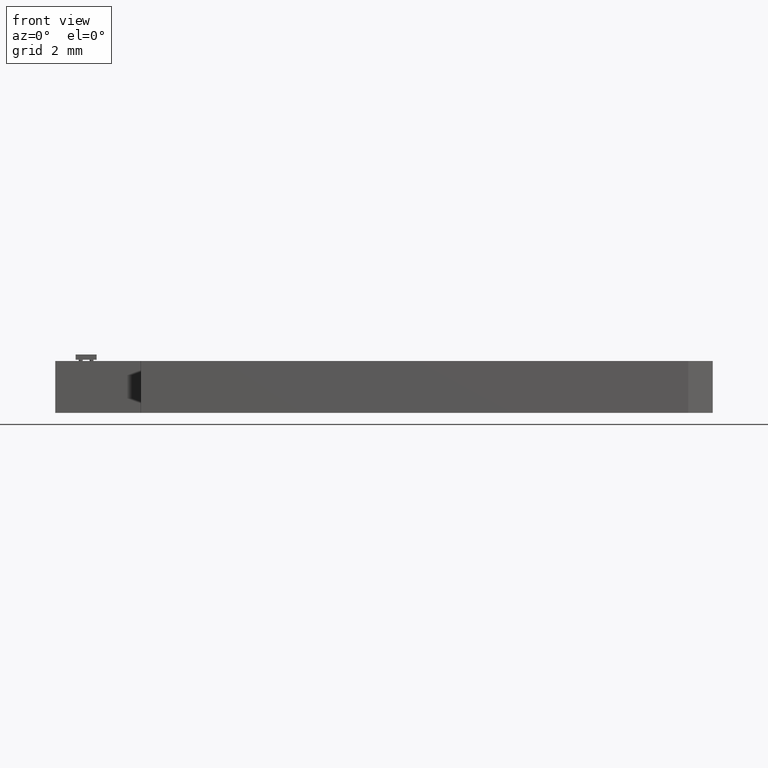
[diagram: clean part render]
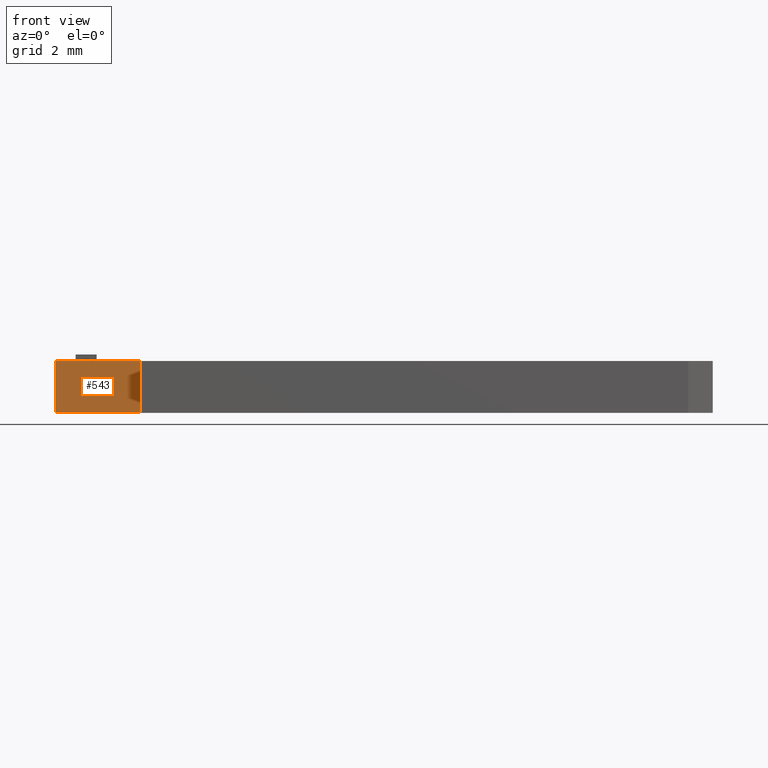
[diagram: same view with one face highlighted and labeled with its STEP entity id]
A machine part, front view. The second image highlights one B-rep face of the part: STEP entity #543.
In plain terms, the highlighted planar face has unit normal (0, -1, 0).
Its self-contained STEP definition (entity closure, byte-faithful):
#516 = VERTEX_POINT('',#517);
#517 = CARTESIAN_POINT('',(4.064008128016,-1.104902209804,1.600025400051
    ));
#524 = EDGE_CURVE('',#525,#516,#527,.T.);
#525 = VERTEX_POINT('',#526);
#526 = CARTESIAN_POINT('',(4.064008128016,-1.104902209804,0.));
#527 = LINE('',#528,#529);
#528 = CARTESIAN_POINT('',(4.064008128016,-1.104902209804,0.));
#529 = VECTOR('',#530,1.);
#530 = DIRECTION('',(0.,0.,1.));
#543 = ADVANCED_FACE('',(#544),#569,.T.);
#544 = FACE_BOUND('',#545,.T.);
#545 = EDGE_LOOP('',(#546,#547,#555,#563));
#546 = ORIENTED_EDGE('',*,*,#524,.T.);
#547 = ORIENTED_EDGE('',*,*,#548,.T.);
#548 = EDGE_CURVE('',#516,#549,#551,.T.);
#549 = VERTEX_POINT('',#550);
#550 = CARTESIAN_POINT('',(1.435102870206,-1.104902209804,1.600025400051
    ));
#551 = LINE('',#552,#553);
#552 = CARTESIAN_POINT('',(4.064008128016,-1.104902209804,1.600025400051
    ));
#553 = VECTOR('',#554,1.);
#554 = DIRECTION('',(-1.,0.,0.));
#555 = ORIENTED_EDGE('',*,*,#556,.F.);
#556 = EDGE_CURVE('',#557,#549,#559,.T.);
#557 = VERTEX_POINT('',#558);
#558 = CARTESIAN_POINT('',(1.435102870206,-1.104902209804,0.));
#559 = LINE('',#560,#561);
#560 = CARTESIAN_POINT('',(1.435102870206,-1.104902209804,0.));
#561 = VECTOR('',#562,1.);
#562 = DIRECTION('',(0.,0.,1.));
#563 = ORIENTED_EDGE('',*,*,#564,.F.);
#564 = EDGE_CURVE('',#525,#557,#565,.T.);
#565 = LINE('',#566,#567);
#566 = CARTESIAN_POINT('',(4.064008128016,-1.104902209804,0.));
#567 = VECTOR('',#568,1.);
#568 = DIRECTION('',(-1.,0.,0.));
#569 = PLANE('',#570);
#570 = AXIS2_PLACEMENT_3D('',#571,#572,#573);
#571 = CARTESIAN_POINT('',(4.064008128016,-1.104902209804,0.));
#572 = DIRECTION('',(0.,-1.,0.));
#573 = DIRECTION('',(-1.,0.,0.));